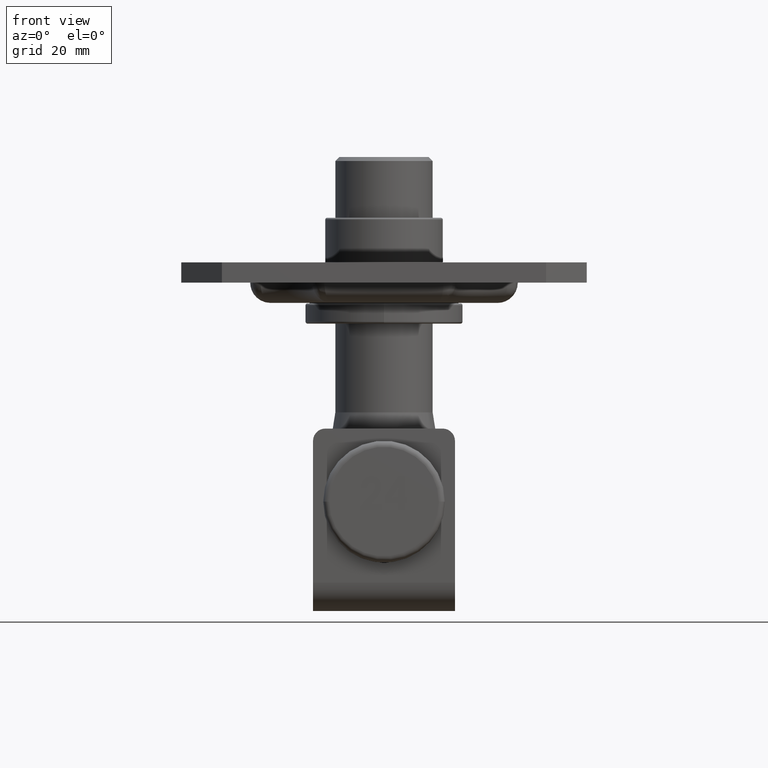
[diagram: clean part render]
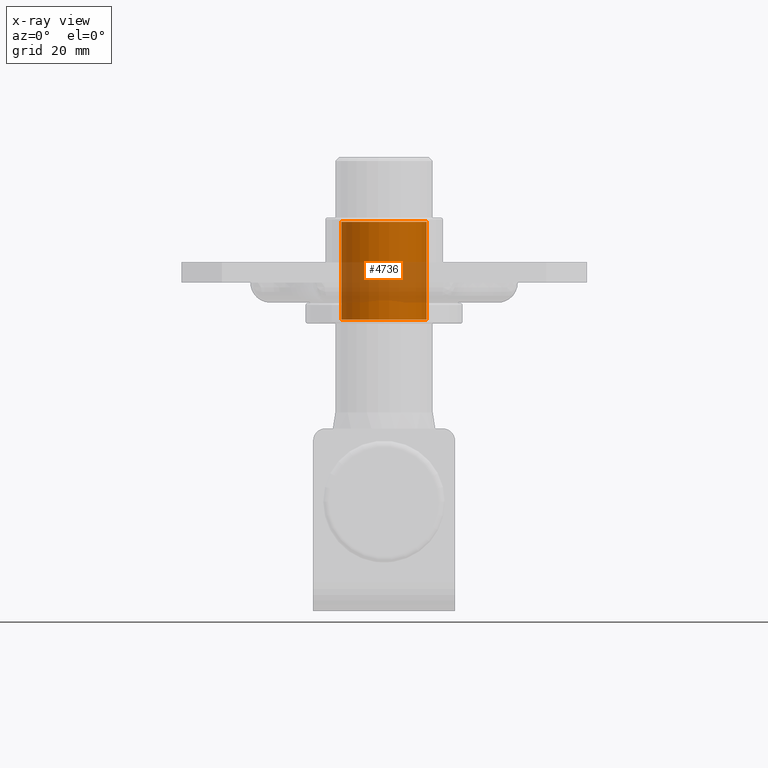
[diagram: x-ray — body ghosted, one internal face saturated and labeled with its STEP entity id]
A machine part, front view, then the same camera in x-ray: the body is ghosted and one INTERNAL B-rep face — a face not visible from any outside direction — is saturated and labeled: STEP entity #4736.
In plain terms, the highlighted cylindrical surface (partial cylindrical patch) has radius 10.5 mm, axis along (0, 0, -1).
Its self-contained STEP definition (entity closure, byte-faithful):
#337 = CARTESIAN_POINT ( 'NONE',  ( 10.49999999999999100, 7.703719777548943400E-031, 12.60000000000000000 ) ) ;
#428 = DIRECTION ( 'NONE',  ( 1.000000000000000000, 0.0000000000000000000, 0.0000000000000000000 ) ) ;
#522 = ORIENTED_EDGE ( 'NONE', *, *, #11018, .T. ) ;
#1247 = CARTESIAN_POINT ( 'NONE',  ( 10.49999999999999100, 7.703719777548943400E-031, -12.49999999999997000 ) ) ;
#2171 = CARTESIAN_POINT ( 'NONE',  ( -10.49999999999999100, 1.285879139104720400E-015, 11.59999999999997100 ) ) ;
#3130 = AXIS2_PLACEMENT_3D ( 'NONE', #14599, #9325, #7724 ) ;
#4048 = VERTEX_POINT ( 'NONE', #1247 ) ;
#4736 = ADVANCED_FACE ( 'NONE', ( #12582 ), #20858, .F. ) ;
#5262 = DIRECTION ( 'NONE',  ( -0.0000000000000000000, -0.0000000000000000000, 1.000000000000000000 ) ) ;
#5756 = VECTOR ( 'NONE', #15842, 1000.000000000000000 ) ;
#5944 = EDGE_CURVE ( 'NONE', #9173, #7571, #13355, .T. ) ;
#6392 = CIRCLE ( 'NONE', #20449, 10.49999999999999100 ) ;
#6658 = CARTESIAN_POINT ( 'NONE',  ( 0.0000000000000000000, 7.703719777548943400E-031, -12.49999999999997000 ) ) ;
#6914 = VECTOR ( 'NONE', #8250, 1000.000000000000000 ) ;
#7478 = EDGE_LOOP ( 'NONE', ( #12677, #522, #21396, #21916 ) ) ;
#7571 = VERTEX_POINT ( 'NONE', #10387 ) ;
#7724 = DIRECTION ( 'NONE',  ( 1.000000000000000000, 0.0000000000000000000, 0.0000000000000000000 ) ) ;
#8250 = DIRECTION ( 'NONE',  ( -0.0000000000000000000, -0.0000000000000000000, 1.000000000000000000 ) ) ;
#9173 = VERTEX_POINT ( 'NONE', #2171 ) ;
#9325 = DIRECTION ( 'NONE',  ( 0.0000000000000000000, 0.0000000000000000000, 1.000000000000000000 ) ) ;
#9858 = CARTESIAN_POINT ( 'NONE',  ( -10.49999999999999100, 1.285879139104720400E-015, 12.60000000000000000 ) ) ;
#10387 = CARTESIAN_POINT ( 'NONE',  ( 10.49999999999999100, 7.703719777548943400E-031, 11.59999999999997100 ) ) ;
#11018 = EDGE_CURVE ( 'NONE', #16092, #9173, #12668, .T. ) ;
#11495 = CARTESIAN_POINT ( 'NONE',  ( -10.49999999999999100, 1.285879139104720400E-015, -12.49999999999997000 ) ) ;
#12582 = FACE_OUTER_BOUND ( 'NONE', #7478, .T. ) ;
#12668 = LINE ( 'NONE', #9858, #6914 ) ;
#12677 = ORIENTED_EDGE ( 'NONE', *, *, #21740, .T. ) ;
#13355 = CIRCLE ( 'NONE', #3130, 10.49999999999999100 ) ;
#14532 = AXIS2_PLACEMENT_3D ( 'NONE', #20915, #5262, #428 ) ;
#14599 = CARTESIAN_POINT ( 'NONE',  ( 0.0000000000000000000, 7.703719777548943400E-031, 11.59999999999997100 ) ) ;
#15201 = DIRECTION ( 'NONE',  ( -1.000000000000000000, 0.0000000000000000000, 0.0000000000000000000 ) ) ;
#15282 = DIRECTION ( 'NONE',  ( 0.0000000000000000000, 0.0000000000000000000, -1.000000000000000000 ) ) ;
#15749 = LINE ( 'NONE', #337, #5756 ) ;
#15842 = DIRECTION ( 'NONE',  ( -0.0000000000000000000, -0.0000000000000000000, 1.000000000000000000 ) ) ;
#16092 = VERTEX_POINT ( 'NONE', #11495 ) ;
#20449 = AXIS2_PLACEMENT_3D ( 'NONE', #6658, #15282, #15201 ) ;
#20858 = CYLINDRICAL_SURFACE ( 'NONE', #14532, 10.49999999999999100 ) ;
#20915 = CARTESIAN_POINT ( 'NONE',  ( 0.0000000000000000000, 7.703719777548943400E-031, 12.60000000000000000 ) ) ;
#21396 = ORIENTED_EDGE ( 'NONE', *, *, #5944, .T. ) ;
#21523 = EDGE_CURVE ( 'NONE', #4048, #7571, #15749, .T. ) ;
#21740 = EDGE_CURVE ( 'NONE', #4048, #16092, #6392, .T. ) ;
#21916 = ORIENTED_EDGE ( 'NONE', *, *, #21523, .F. ) ;